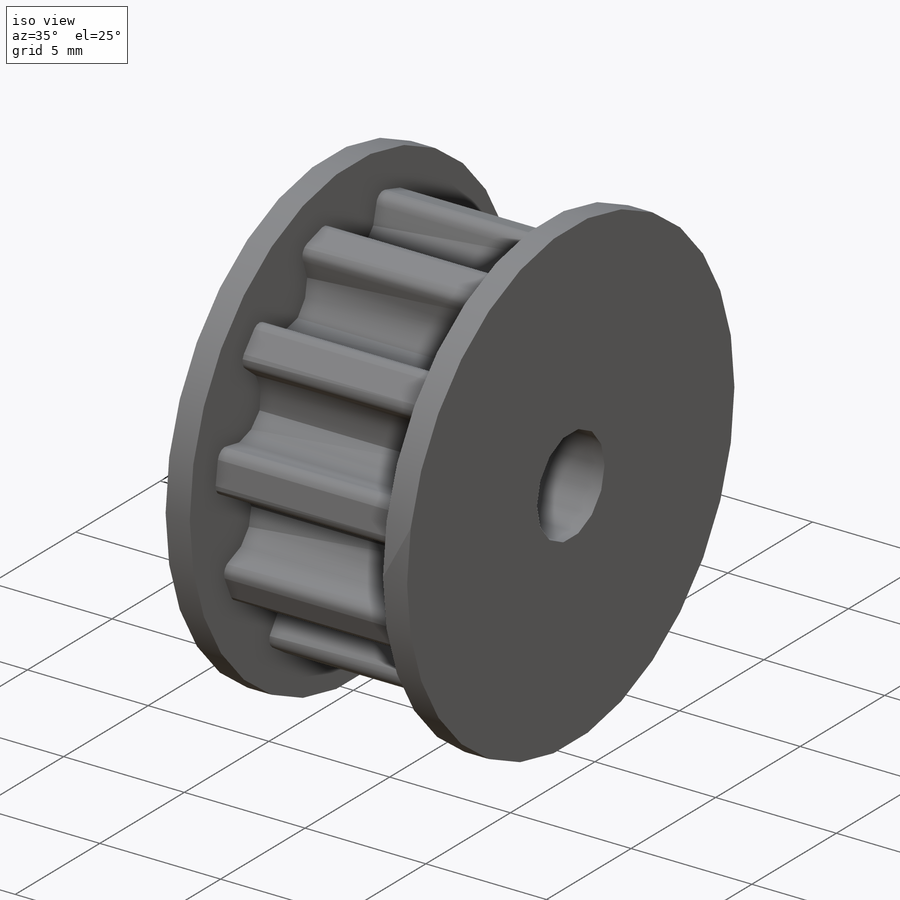
[diagram: iso view]
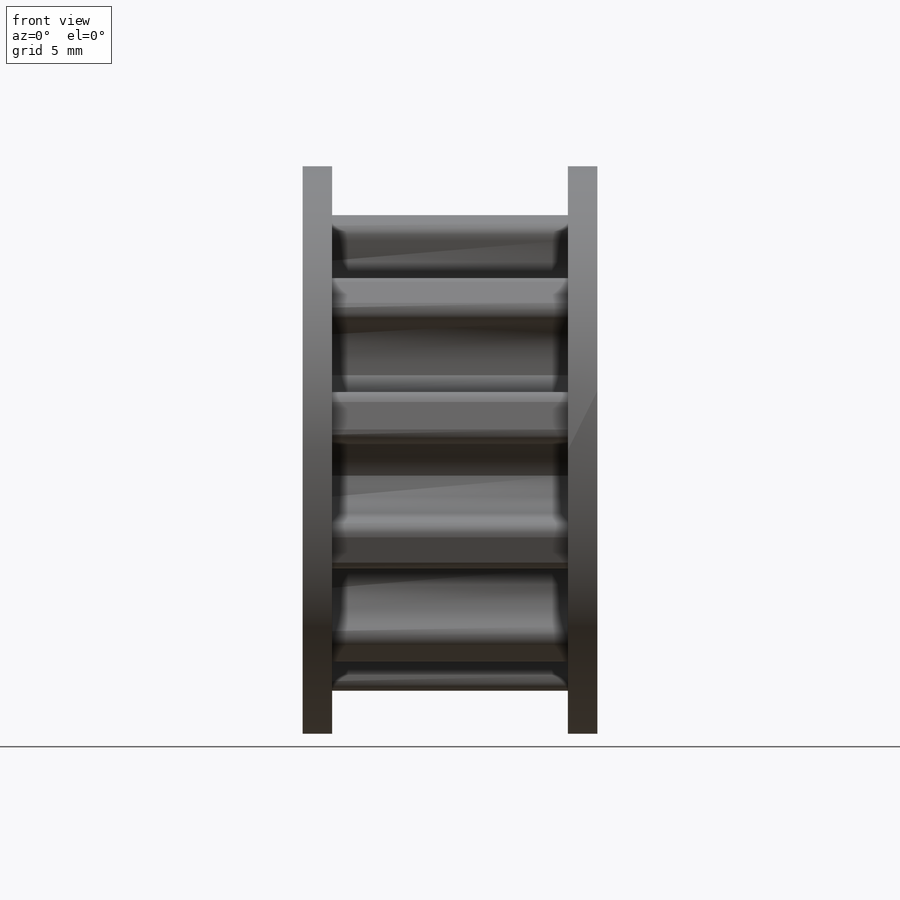
[diagram: front view]
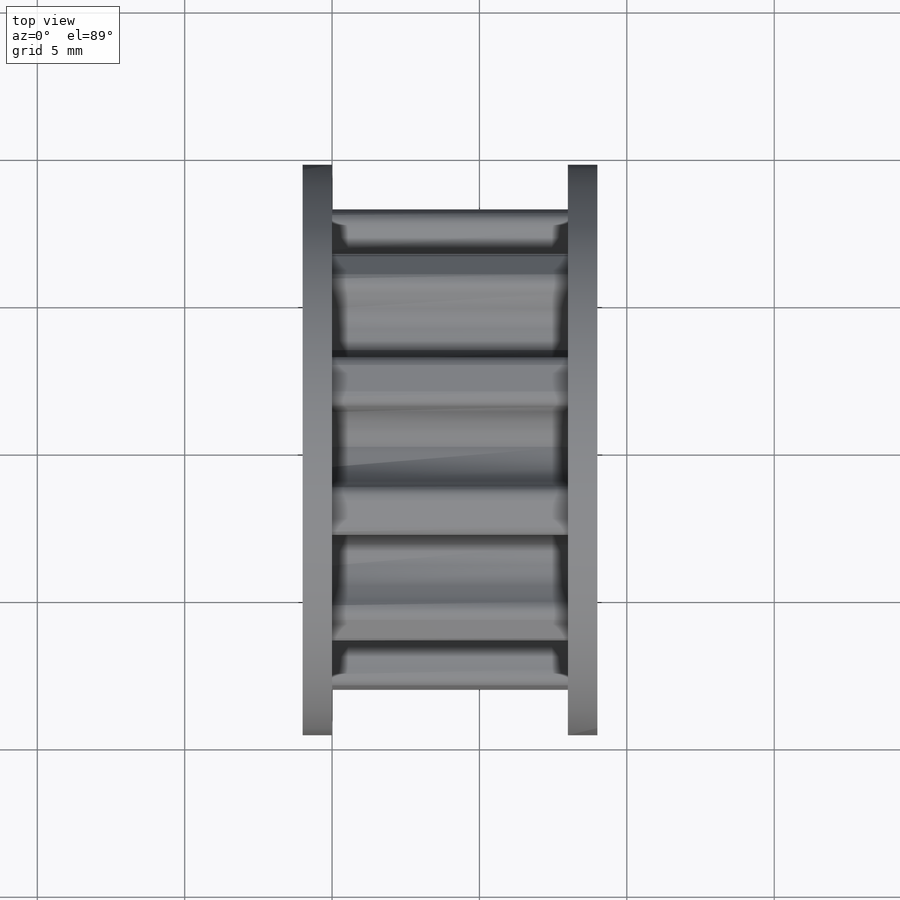
[diagram: top view]
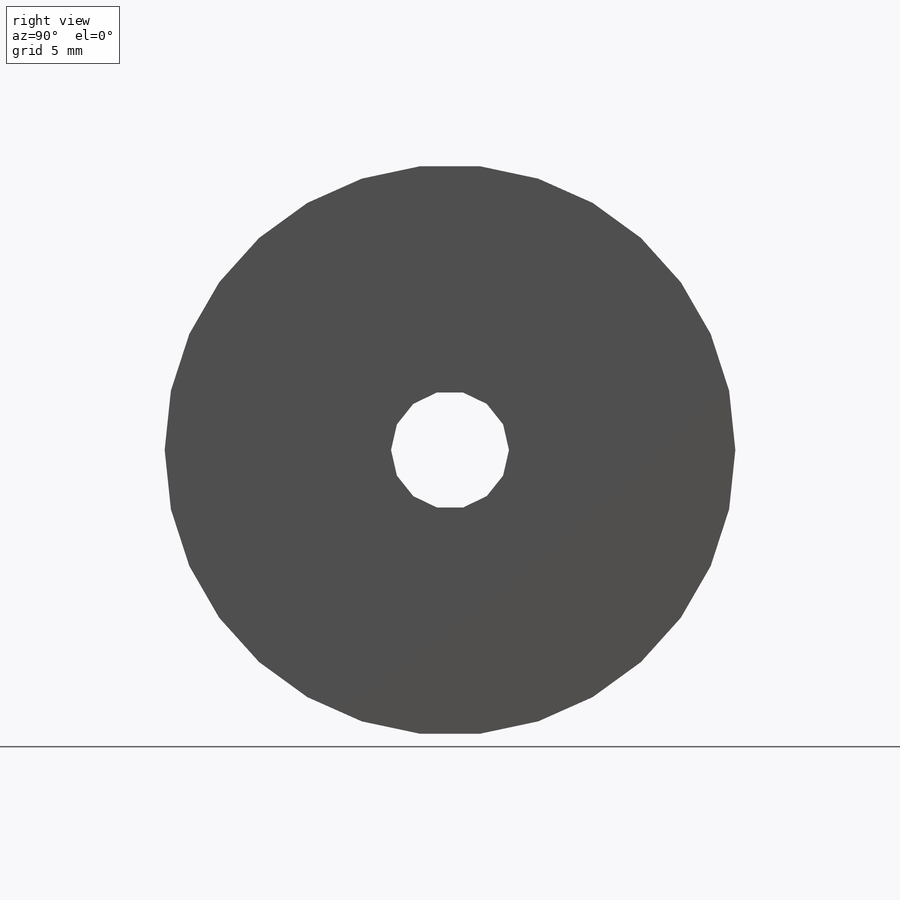
[diagram: right view]
SOLIDWORKS PART (.sldprt)
format: sldprt  version: not decoded by parser v0  size: 311,296 bytes
history: native  units: mm
features: sketch x4, extrude x2, cut_extrude x2, material x1, pattern_circular x1, plane x1, mirror x1 (+13 scaffold rows collapsed)
feature tree (25):
  scaffold x13  (default folders/planes/origin — collapsed)
  material  "Material <not specified>"
  sketch  "Sketch1"  dims[D1=16.36mm]
  extrude  "Boss-Extrude1"  Depth=8mm
  sketch  "Sketch2"  dims[c1.D1=~1.102492mm c1.D4=1.5mm c2.D1=0.41mm c2.D2=1.5mm c3.D1=2.08mm c3.D2=0.41mm c4.D1=0.42mm c4.D2=2.08mm c4.D3=1.85mm c4.D4=0.42mm c4.D5=~1.354266mm c5.D4=2.08mm]
  cut_extrude  "Cut-Extrude1"  [1 undecoded]
  pattern_circular  "CirPattern1"  Count=11 Angle=360deg
  plane  "Plane1"
  sketch  "Sketch4"  dims[D1=1.5mm]
  extrude  "Boss-Extrude2"  Depth=1mm
  mirror  "Mirror1"
  sketch  "Sketch6"  dims[D1=4.0mm]
  cut_extrude  "Cut-Extrude2"  [1 undecoded]
decode coverage: 7 of 10 modeling features carry decoded parameters
note: ~ marks probable driven/reference dimensions
note: 2 parameter values undecoded
note: suppression state not decoded; provenance and decode notes live in map.json
